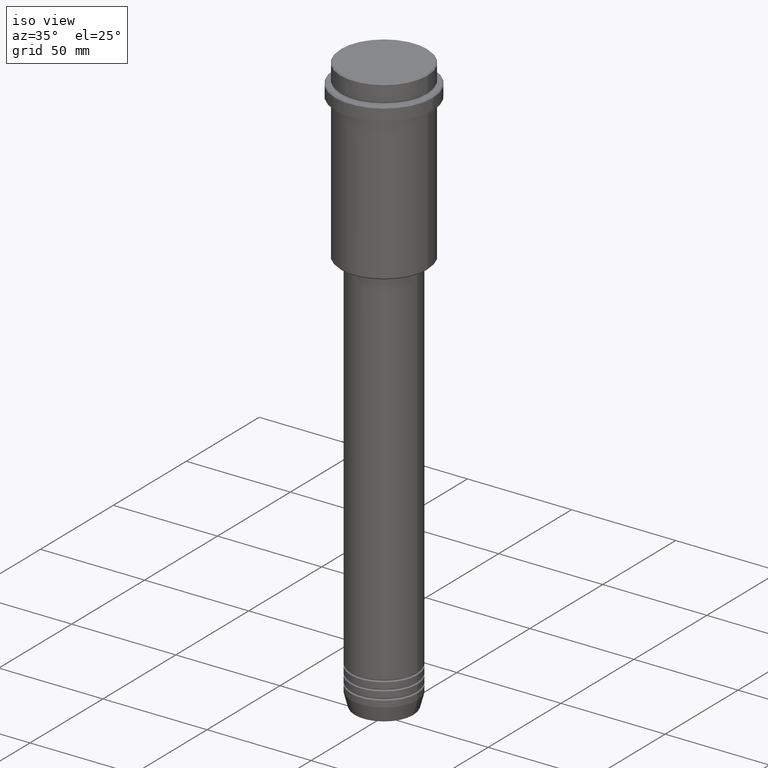
[diagram: clean part render]
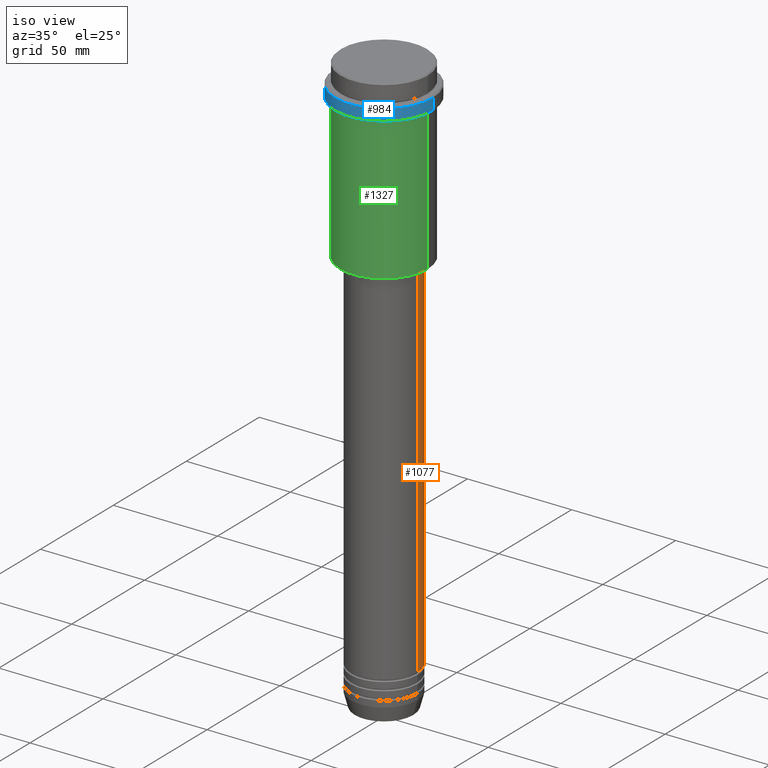
[diagram: same view with three faces highlighted in distinct colors, each labeled with its STEP entity id]
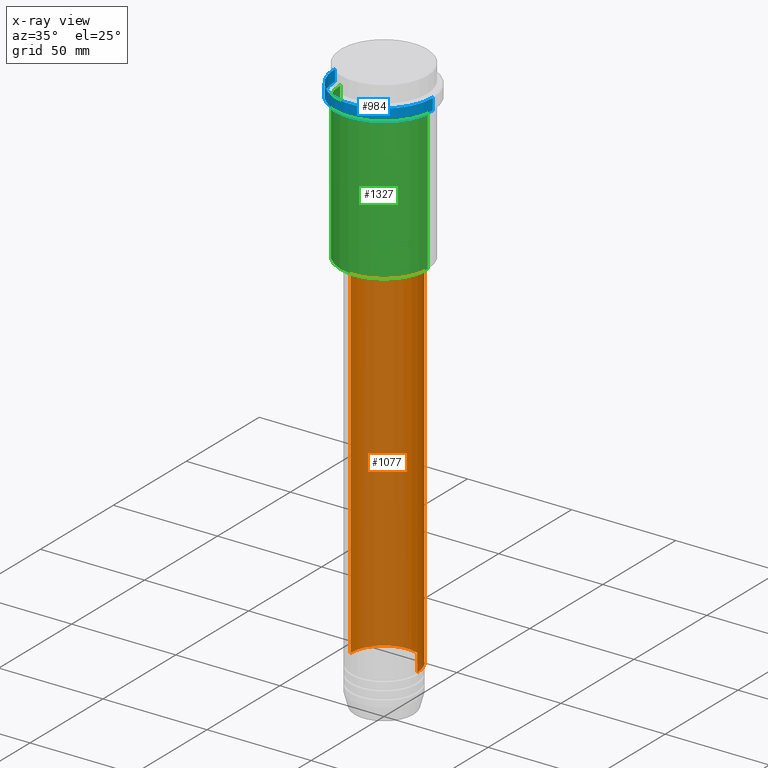
[diagram: x-ray of the same camera — body ghosted, the three highlighted faces saturated]
A machine part, iso view with three faces highlighted in distinct colors.
The next image is the same camera in x-ray (body ghosted, the three faces saturated) — at least one of them is partly hidden behind the body in this view.
Their STEP definitions:

[orange] entity #1077 — the highlighted cylindrical surface (partial cylindrical patch) has radius 16 mm, axis along (-0, -0, 1).
#12 = CYLINDRICAL_SURFACE ( 'NONE', #414, 16.00000000000000000 ) ;
#17 = FACE_OUTER_BOUND ( 'NONE', #1003, .T. ) ;
#66 = DIRECTION ( 'NONE',  ( 1.000000000000000000, 0.000000000000000000, 0.000000000000000000 ) ) ;
#106 = DIRECTION ( 'NONE',  ( -0.000000000000000000, -0.000000000000000000, 1.000000000000000000 ) ) ;
#122 = LINE ( 'NONE', #782, #1295 ) ;
#147 = ORIENTED_EDGE ( 'NONE', *, *, #658, .F. ) ;
#153 = CARTESIAN_POINT ( 'NONE',  ( 0.000000000000000000, 0.000000000000000000, -260.9999999999998863 ) ) ;
#213 = CARTESIAN_POINT ( 'NONE',  ( 16.00000000000000000, 0.000000000000000000, -260.9999999999998863 ) ) ;
#269 = EDGE_CURVE ( 'NONE', #687, #873, #122, .T. ) ;
#328 = DIRECTION ( 'NONE',  ( 1.000000000000000000, 0.000000000000000000, 0.000000000000000000 ) ) ;
#414 = AXIS2_PLACEMENT_3D ( 'NONE', #893, #106, #328 ) ;
#459 = CIRCLE ( 'NONE', #1275, 16.00000000000000000 ) ;
#461 = CARTESIAN_POINT ( 'NONE',  ( 16.00000000000000000, 0.000000000000000000, 0.000000000000000000 ) ) ;
#488 = AXIS2_PLACEMENT_3D ( 'NONE', #709, #582, #491 ) ;
#491 = DIRECTION ( 'NONE',  ( 1.000000000000000000, 0.000000000000000000, 0.000000000000000000 ) ) ;
#517 = VERTEX_POINT ( 'NONE', #852 ) ;
#535 = CARTESIAN_POINT ( 'NONE',  ( -16.00000000000000355, 1.959434878635765526E-15, -86.00000000000001421 ) ) ;
#554 = DIRECTION ( 'NONE',  ( -0.000000000000000000, -0.000000000000000000, 1.000000000000000000 ) ) ;
#561 = DIRECTION ( 'NONE',  ( -0.000000000000000000, -0.000000000000000000, 1.000000000000000000 ) ) ;
#582 = DIRECTION ( 'NONE',  ( -0.000000000000000000, -0.000000000000000000, 1.000000000000000000 ) ) ;
#584 = CARTESIAN_POINT ( 'NONE',  ( -16.00000000000000000, 1.959434878635765131E-15, -260.9999999999998863 ) ) ;
#602 = VERTEX_POINT ( 'NONE', #213 ) ;
#658 = EDGE_CURVE ( 'NONE', #602, #517, #1345, .T. ) ;
#687 = VERTEX_POINT ( 'NONE', #584 ) ;
#709 = CARTESIAN_POINT ( 'NONE',  ( 0.000000000000000000, 0.000000000000000000, -86.00000000000001421 ) ) ;
#782 = CARTESIAN_POINT ( 'NONE',  ( -16.00000000000000000, 1.959434878635765131E-15, 0.000000000000000000 ) ) ;
#791 = VECTOR ( 'NONE', #554, 1000.000000000000000 ) ;
#818 = EDGE_CURVE ( 'NONE', #602, #687, #459, .T. ) ;
#852 = CARTESIAN_POINT ( 'NONE',  ( 16.00000000000000355, 0.000000000000000000, -86.00000000000001421 ) ) ;
#873 = VERTEX_POINT ( 'NONE', #535 ) ;
#893 = CARTESIAN_POINT ( 'NONE',  ( 0.000000000000000000, 0.000000000000000000, 0.000000000000000000 ) ) ;
#942 = ORIENTED_EDGE ( 'NONE', *, *, #1216, .F. ) ;
#1003 = EDGE_LOOP ( 'NONE', ( #1084, #1075, #942, #147 ) ) ;
#1058 = DIRECTION ( 'NONE',  ( -0.000000000000000000, -0.000000000000000000, 1.000000000000000000 ) ) ;
#1074 = CIRCLE ( 'NONE', #488, 16.00000000000000355 ) ;
#1075 = ORIENTED_EDGE ( 'NONE', *, *, #269, .T. ) ;
#1077 = ADVANCED_FACE ( 'NONE', ( #17 ), #12, .T. ) ;
#1084 = ORIENTED_EDGE ( 'NONE', *, *, #818, .T. ) ;
#1216 = EDGE_CURVE ( 'NONE', #517, #873, #1074, .T. ) ;
#1275 = AXIS2_PLACEMENT_3D ( 'NONE', #153, #1058, #66 ) ;
#1295 = VECTOR ( 'NONE', #561, 1000.000000000000000 ) ;
#1345 = LINE ( 'NONE', #461, #791 ) ;

[blue] entity #984 — the highlighted cylindrical surface (partial cylindrical patch) has radius 23.5 mm, axis along (-0, -0, 1).
#13 = DIRECTION ( 'NONE',  ( 0.000000000000000000, 0.000000000000000000, -1.000000000000000000 ) ) ;
#49 = EDGE_LOOP ( 'NONE', ( #344, #419, #756, #581 ) ) ;
#63 = CARTESIAN_POINT ( 'NONE',  ( -23.50000000000000000, 2.877919977996280320E-15, -9.499999999999973355 ) ) ;
#111 = VECTOR ( 'NONE', #191, 1000.000000000000000 ) ;
#118 = DIRECTION ( 'NONE',  ( -0.000000000000000000, -0.000000000000000000, 1.000000000000000000 ) ) ;
#136 = VERTEX_POINT ( 'NONE', #63 ) ;
#191 = DIRECTION ( 'NONE',  ( -0.000000000000000000, -0.000000000000000000, 1.000000000000000000 ) ) ;
#218 = CARTESIAN_POINT ( 'NONE',  ( -23.50000000000000000, 2.877919977996280320E-15, 0.000000000000000000 ) ) ;
#228 = VECTOR ( 'NONE', #118, 1000.000000000000000 ) ;
#240 = VERTEX_POINT ( 'NONE', #985 ) ;
#255 = VERTEX_POINT ( 'NONE', #1132 ) ;
#339 = CARTESIAN_POINT ( 'NONE',  ( 23.50000000000000355, 0.000000000000000000, -15.00000000000000178 ) ) ;
#344 = ORIENTED_EDGE ( 'NONE', *, *, #1078, .F. ) ;
#401 = DIRECTION ( 'NONE',  ( 1.000000000000000000, 0.000000000000000000, 0.000000000000000000 ) ) ;
#419 = ORIENTED_EDGE ( 'NONE', *, *, #1326, .T. ) ;
#426 = CARTESIAN_POINT ( 'NONE',  ( 0.000000000000000000, 0.000000000000000000, 0.000000000000000000 ) ) ;
#514 = EDGE_CURVE ( 'NONE', #1133, #240, #1302, .T. ) ;
#522 = CARTESIAN_POINT ( 'NONE',  ( 0.000000000000000000, 0.000000000000000000, -15.00000000000000178 ) ) ;
#581 = ORIENTED_EDGE ( 'NONE', *, *, #661, .T. ) ;
#650 = LINE ( 'NONE', #218, #228 ) ;
#661 = EDGE_CURVE ( 'NONE', #240, #136, #885, .T. ) ;
#737 = DIRECTION ( 'NONE',  ( 1.000000000000000000, 0.000000000000000000, 0.000000000000000000 ) ) ;
#756 = ORIENTED_EDGE ( 'NONE', *, *, #514, .T. ) ;
#869 = CIRCLE ( 'NONE', #1251, 23.50000000000000355 ) ;
#885 = CIRCLE ( 'NONE', #1045, 23.50000000000000000 ) ;
#895 = DIRECTION ( 'NONE',  ( 1.000000000000000000, 0.000000000000000000, 0.000000000000000000 ) ) ;
#984 = ADVANCED_FACE ( 'NONE', ( #1391 ), #1091, .T. ) ;
#985 = CARTESIAN_POINT ( 'NONE',  ( 23.50000000000000000, 0.000000000000000000, -9.499999999999973355 ) ) ;
#1004 = CARTESIAN_POINT ( 'NONE',  ( 0.000000000000000000, 0.000000000000000000, -9.499999999999973355 ) ) ;
#1020 = AXIS2_PLACEMENT_3D ( 'NONE', #426, #1285, #401 ) ;
#1045 = AXIS2_PLACEMENT_3D ( 'NONE', #1004, #13, #895 ) ;
#1078 = EDGE_CURVE ( 'NONE', #255, #136, #650, .T. ) ;
#1091 = CYLINDRICAL_SURFACE ( 'NONE', #1020, 23.50000000000000000 ) ;
#1132 = CARTESIAN_POINT ( 'NONE',  ( -23.50000000000000711, 2.877919977996281109E-15, -15.00000000000000178 ) ) ;
#1133 = VERTEX_POINT ( 'NONE', #339 ) ;
#1209 = CARTESIAN_POINT ( 'NONE',  ( 23.50000000000000000, 0.000000000000000000, 0.000000000000000000 ) ) ;
#1251 = AXIS2_PLACEMENT_3D ( 'NONE', #522, #1304, #737 ) ;
#1285 = DIRECTION ( 'NONE',  ( -0.000000000000000000, -0.000000000000000000, 1.000000000000000000 ) ) ;
#1302 = LINE ( 'NONE', #1209, #111 ) ;
#1304 = DIRECTION ( 'NONE',  ( -0.000000000000000000, -0.000000000000000000, 1.000000000000000000 ) ) ;
#1326 = EDGE_CURVE ( 'NONE', #255, #1133, #869, .T. ) ;
#1391 = FACE_OUTER_BOUND ( 'NONE', #49, .T. ) ;

[green] entity #1327 — the highlighted cylindrical surface (partial cylindrical patch) has radius 21 mm, axis along (-0, -0, 1).
#1 = CIRCLE ( 'NONE', #316, 20.99999999999999645 ) ;
#34 = DIRECTION ( 'NONE',  ( -0.000000000000000000, -0.000000000000000000, 1.000000000000000000 ) ) ;
#48 = EDGE_CURVE ( 'NONE', #1373, #1256, #268, .T. ) ;
#79 = DIRECTION ( 'NONE',  ( -0.000000000000000000, -0.000000000000000000, 1.000000000000000000 ) ) ;
#91 = EDGE_CURVE ( 'NONE', #195, #1256, #1, .T. ) ;
#167 = DIRECTION ( 'NONE',  ( 1.000000000000000000, 0.000000000000000000, 0.000000000000000000 ) ) ;
#195 = VERTEX_POINT ( 'NONE', #197 ) ;
#197 = CARTESIAN_POINT ( 'NONE',  ( -20.99999999999999645, 2.571758278209441267E-15, -16.00000000000000355 ) ) ;
#263 = CARTESIAN_POINT ( 'NONE',  ( 0.000000000000000000, 0.000000000000000000, -84.49999999999994316 ) ) ;
#268 = LINE ( 'NONE', #280, #1380 ) ;
#280 = CARTESIAN_POINT ( 'NONE',  ( 20.99999999999999645, 0.000000000000000000, 0.000000000000000000 ) ) ;
#288 = ORIENTED_EDGE ( 'NONE', *, *, #91, .F. ) ;
#302 = CIRCLE ( 'NONE', #771, 20.99999999999999645 ) ;
#307 = DIRECTION ( 'NONE',  ( 1.000000000000000000, 0.000000000000000000, 0.000000000000000000 ) ) ;
#316 = AXIS2_PLACEMENT_3D ( 'NONE', #725, #1172, #167 ) ;
#399 = FACE_OUTER_BOUND ( 'NONE', #400, .T. ) ;
#400 = EDGE_LOOP ( 'NONE', ( #1039, #576, #980, #288 ) ) ;
#411 = CARTESIAN_POINT ( 'NONE',  ( -20.99999999999999645, 2.571758278209441267E-15, 0.000000000000000000 ) ) ;
#504 = EDGE_CURVE ( 'NONE', #1287, #195, #759, .T. ) ;
#515 = CARTESIAN_POINT ( 'NONE',  ( 20.99999999999999645, 0.000000000000000000, -84.49999999999994316 ) ) ;
#528 = DIRECTION ( 'NONE',  ( -0.000000000000000000, -0.000000000000000000, 1.000000000000000000 ) ) ;
#576 = ORIENTED_EDGE ( 'NONE', *, *, #1207, .T. ) ;
#725 = CARTESIAN_POINT ( 'NONE',  ( 0.000000000000000000, 0.000000000000000000, -16.00000000000000355 ) ) ;
#726 = CARTESIAN_POINT ( 'NONE',  ( 0.000000000000000000, 0.000000000000000000, 0.000000000000000000 ) ) ;
#759 = LINE ( 'NONE', #411, #1274 ) ;
#771 = AXIS2_PLACEMENT_3D ( 'NONE', #263, #34, #1134 ) ;
#840 = CYLINDRICAL_SURFACE ( 'NONE', #998, 20.99999999999999645 ) ;
#980 = ORIENTED_EDGE ( 'NONE', *, *, #48, .T. ) ;
#998 = AXIS2_PLACEMENT_3D ( 'NONE', #726, #79, #307 ) ;
#1039 = ORIENTED_EDGE ( 'NONE', *, *, #504, .F. ) ;
#1062 = DIRECTION ( 'NONE',  ( -0.000000000000000000, -0.000000000000000000, 1.000000000000000000 ) ) ;
#1134 = DIRECTION ( 'NONE',  ( -1.000000000000000000, 0.000000000000000000, 0.000000000000000000 ) ) ;
#1144 = CARTESIAN_POINT ( 'NONE',  ( -20.99999999999999645, 2.571758278209441267E-15, -84.49999999999994316 ) ) ;
#1164 = CARTESIAN_POINT ( 'NONE',  ( 20.99999999999999645, 0.000000000000000000, -16.00000000000000355 ) ) ;
#1172 = DIRECTION ( 'NONE',  ( -0.000000000000000000, -0.000000000000000000, 1.000000000000000000 ) ) ;
#1207 = EDGE_CURVE ( 'NONE', #1287, #1373, #302, .T. ) ;
#1256 = VERTEX_POINT ( 'NONE', #1164 ) ;
#1274 = VECTOR ( 'NONE', #528, 1000.000000000000000 ) ;
#1287 = VERTEX_POINT ( 'NONE', #1144 ) ;
#1327 = ADVANCED_FACE ( 'NONE', ( #399 ), #840, .T. ) ;
#1373 = VERTEX_POINT ( 'NONE', #515 ) ;
#1380 = VECTOR ( 'NONE', #1062, 1000.000000000000000 ) ;